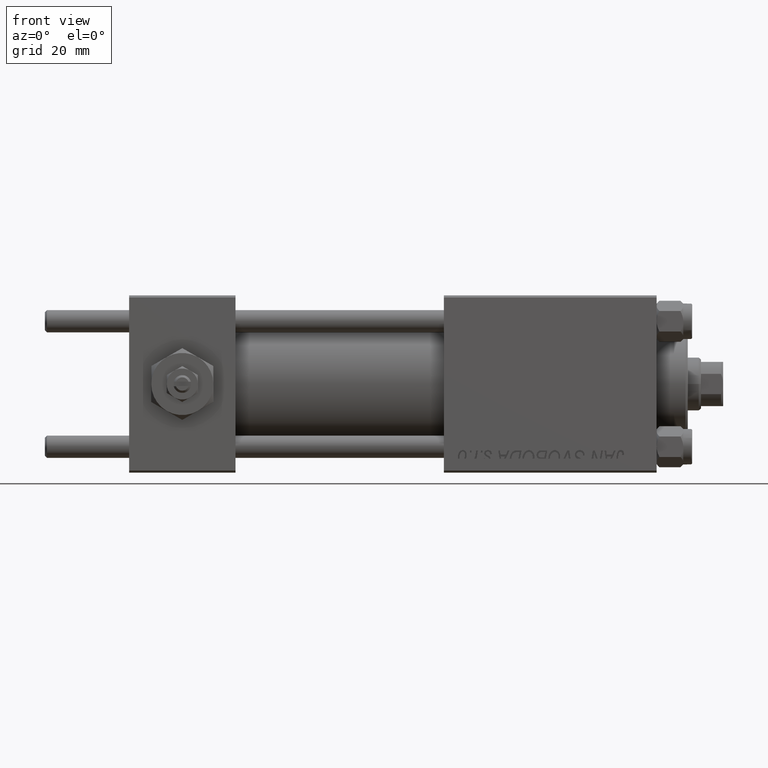
[diagram: clean part render]
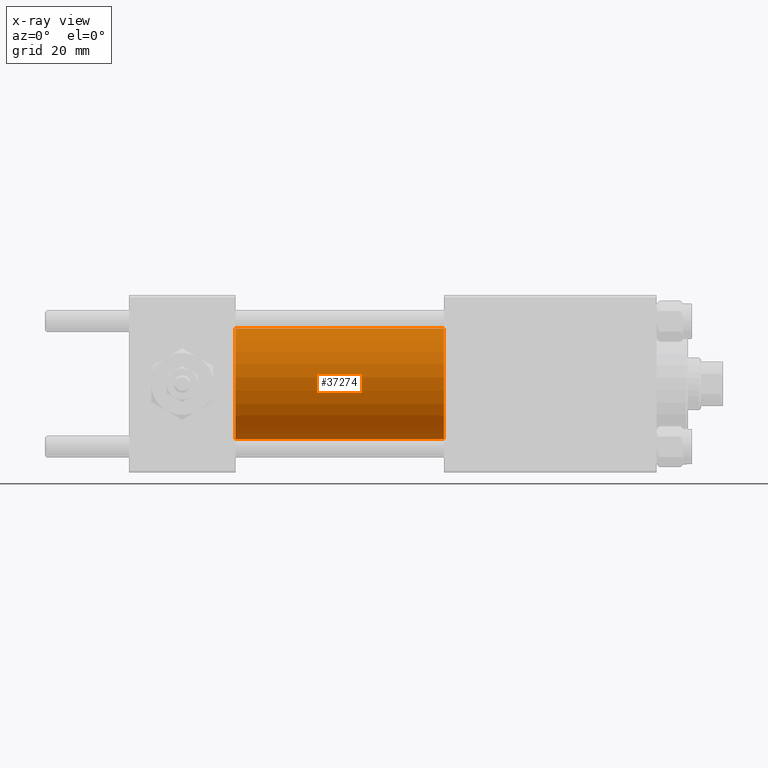
[diagram: x-ray — body ghosted, one internal face saturated and labeled with its STEP entity id]
A machine part, front view, then the same camera in x-ray: the body is ghosted and one INTERNAL B-rep face — a face not visible from any outside direction — is saturated and labeled: STEP entity #37274.
In plain terms, the highlighted cylindrical surface (partial cylindrical patch) has radius 12.5 mm, axis along (-1, -0, -0).
Its self-contained STEP definition (entity closure, byte-faithful):
#92 = VERTEX_POINT ( 'NONE', #36165 ) ;
#5253 = DIRECTION ( 'NONE',  ( -1.000000000000000000, -0.000000000000000000, -0.000000000000000000 ) ) ;
#5659 = EDGE_CURVE ( 'NONE', #92, #39009, #27253, .T. ) ;
#6023 = DIRECTION ( 'NONE',  ( 0.000000000000000000, 0.000000000000000000, -1.000000000000000000 ) ) ;
#7570 = VECTOR ( 'NONE', #46536, 1000.000000000000000 ) ;
#8798 = ORIENTED_EDGE ( 'NONE', *, *, #5659, .T. ) ;
#11015 = VERTEX_POINT ( 'NONE', #15848 ) ;
#13870 = EDGE_LOOP ( 'NONE', ( #32058, #8798, #21831, #49724 ) ) ;
#15652 = EDGE_CURVE ( 'NONE', #24201, #39009, #37744, .T. ) ;
#15848 = CARTESIAN_POINT ( 'NONE',  ( 71.00000000000001421, 0.000000000000000000, 12.49999999999999645 ) ) ;
#16583 = DIRECTION ( 'NONE',  ( 0.000000000000000000, 0.000000000000000000, -1.000000000000000000 ) ) ;
#17208 = LINE ( 'NONE', #36490, #18142 ) ;
#18142 = VECTOR ( 'NONE', #5253, 1000.000000000000000 ) ;
#19775 = CARTESIAN_POINT ( 'NONE',  ( 24.00000000000000000, 0.000000000000000000, 12.49999999999999645 ) ) ;
#21831 = ORIENTED_EDGE ( 'NONE', *, *, #15652, .F. ) ;
#23051 = CARTESIAN_POINT ( 'NONE',  ( 71.00000000000001421, 0.000000000000000000, 0.000000000000000000 ) ) ;
#24144 = CARTESIAN_POINT ( 'NONE',  ( 24.00000000000000000, 0.000000000000000000, 0.000000000000000000 ) ) ;
#24201 = VERTEX_POINT ( 'NONE', #19775 ) ;
#25550 = DIRECTION ( 'NONE',  ( 1.000000000000000000, 0.000000000000000000, 0.000000000000000000 ) ) ;
#27193 = EDGE_CURVE ( 'NONE', #11015, #24201, #17208, .T. ) ;
#27253 = LINE ( 'NONE', #47043, #7570 ) ;
#27721 = AXIS2_PLACEMENT_3D ( 'NONE', #23051, #38937, #41886 ) ;
#29438 = CARTESIAN_POINT ( 'NONE',  ( 71.00000000000001421, 0.000000000000000000, 0.000000000000000000 ) ) ;
#29615 = CARTESIAN_POINT ( 'NONE',  ( 24.00000000000000000, 1.530808498934191127E-15, -12.49999999999999645 ) ) ;
#29665 = CYLINDRICAL_SURFACE ( 'NONE', #27721, 12.49999999999999645 ) ;
#32058 = ORIENTED_EDGE ( 'NONE', *, *, #50058, .T. ) ;
#35020 = FACE_OUTER_BOUND ( 'NONE', #13870, .T. ) ;
#35612 = DIRECTION ( 'NONE',  ( 1.000000000000000000, 0.000000000000000000, 0.000000000000000000 ) ) ;
#36165 = CARTESIAN_POINT ( 'NONE',  ( 71.00000000000001421, 1.530808498934191127E-15, -12.49999999999999645 ) ) ;
#36342 = CIRCLE ( 'NONE', #42133, 12.49999999999999645 ) ;
#36490 = CARTESIAN_POINT ( 'NONE',  ( 71.00000000000001421, 0.000000000000000000, 12.49999999999999645 ) ) ;
#37274 = ADVANCED_FACE ( 'NONE', ( #35020 ), #29665, .F. ) ;
#37744 = CIRCLE ( 'NONE', #44385, 12.49999999999999645 ) ;
#38937 = DIRECTION ( 'NONE',  ( -1.000000000000000000, -0.000000000000000000, -0.000000000000000000 ) ) ;
#39009 = VERTEX_POINT ( 'NONE', #29615 ) ;
#41886 = DIRECTION ( 'NONE',  ( 0.000000000000000000, 0.000000000000000000, 1.000000000000000000 ) ) ;
#42133 = AXIS2_PLACEMENT_3D ( 'NONE', #29438, #25550, #6023 ) ;
#44385 = AXIS2_PLACEMENT_3D ( 'NONE', #24144, #35612, #16583 ) ;
#46536 = DIRECTION ( 'NONE',  ( -1.000000000000000000, -0.000000000000000000, -0.000000000000000000 ) ) ;
#47043 = CARTESIAN_POINT ( 'NONE',  ( 71.00000000000001421, 1.530808498934191127E-15, -12.49999999999999645 ) ) ;
#49724 = ORIENTED_EDGE ( 'NONE', *, *, #27193, .F. ) ;
#50058 = EDGE_CURVE ( 'NONE', #11015, #92, #36342, .T. ) ;